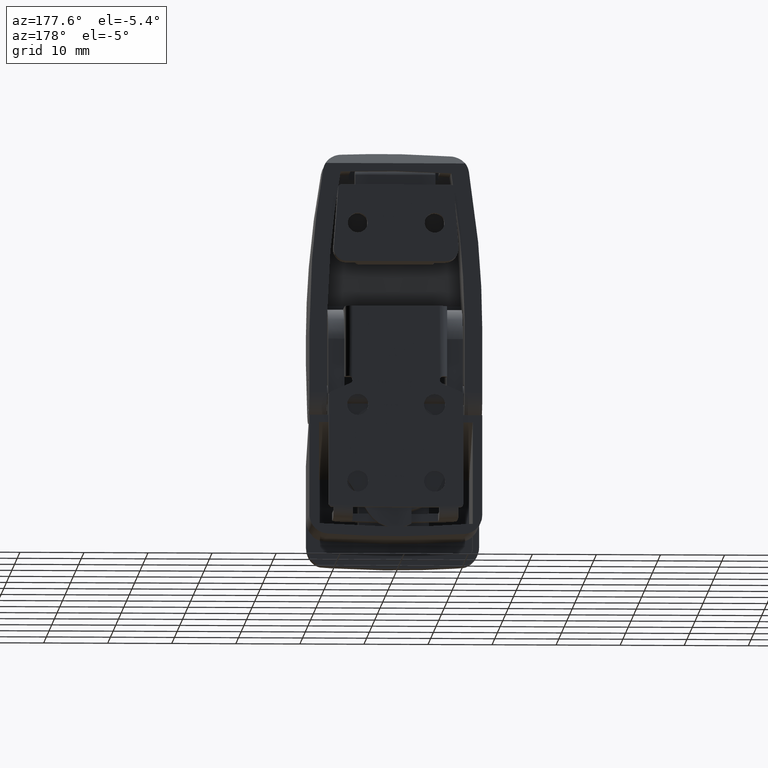
[diagram: clean part render]
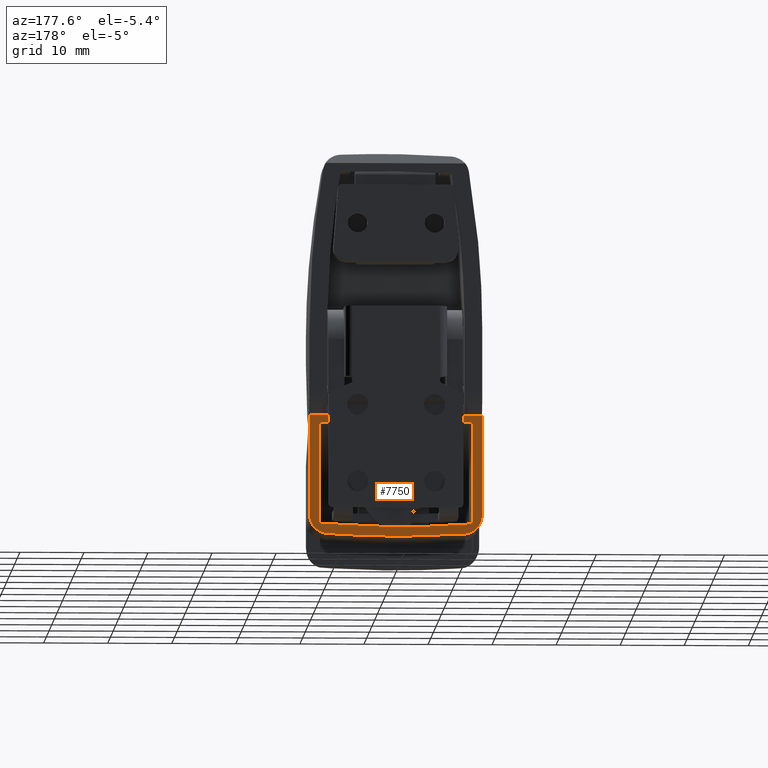
[diagram: same view with one face highlighted and labeled with its STEP entity id]
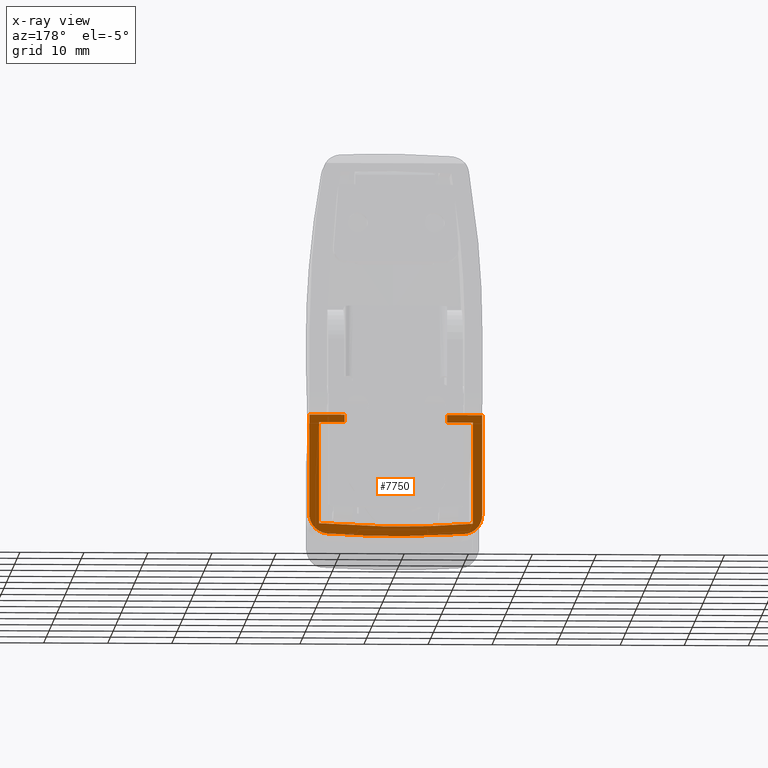
[diagram: x-ray of the same camera — body ghosted, the highlighted face saturated]
A machine part, auxiliary view. The second image highlights one B-rep face of the part: STEP entity #7750.
The next image is the same camera in x-ray: the body ghosted, the highlighted face saturated — about 0% of this face is hidden behind the body in this view.
In plain terms, the highlighted face is a freeform B-spline surface patch.
Its self-contained STEP definition (entity closure, byte-faithful):
#3903=CARTESIAN_POINT('',(-1.201443999999980,8.0,-2.654700546271595));
#3904=VERTEX_POINT('',#3903);
#3910=CARTESIAN_POINT('',(-1.201443999999980,8.0,-1.500000000000000));
#3911=VERTEX_POINT('',#3910);
#3912=CARTESIAN_POINT('',(-1.201443999999980,8.0,-1.500000000000000));
#3913=CARTESIAN_POINT('',(-1.201443999999980,8.0,-2.654700546271595));
#3914=QUASI_UNIFORM_CURVE('',1,(#3912,#3913),.UNSPECIFIED.,.F.,.U.);
#3915=EDGE_CURVE('',#3911,#3904,#3914,.T.);
#3992=CARTESIAN_POINT('',(-1.201443999999980,-8.0,-1.500000000000000));
#3993=VERTEX_POINT('',#3992);
#3999=CARTESIAN_POINT('',(-1.201443999999980,-8.0,-2.654700546271595));
#4000=VERTEX_POINT('',#3999);
#4001=CARTESIAN_POINT('',(-1.201443999999980,-8.0,-2.654700546271595));
#4002=CARTESIAN_POINT('',(-1.201443999999980,-8.0,-1.500000000000000));
#4003=QUASI_UNIFORM_CURVE('',1,(#4001,#4002),.UNSPECIFIED.,.F.,.U.);
#4004=EDGE_CURVE('',#4000,#3993,#4003,.T.);
#5026=CARTESIAN_POINT('',(-1.201443999999980,12.0,-2.654700546271600));
#5027=VERTEX_POINT('',#5026);
#5033=CARTESIAN_POINT('',(-1.201443999999980,12.0,-2.654700546271600));
#5034=CARTESIAN_POINT('',(-1.201443999999980,8.0,-2.654700546271595));
#5035=QUASI_UNIFORM_CURVE('',1,(#5033,#5034),.UNSPECIFIED.,.F.,.U.);
#5036=EDGE_CURVE('',#5027,#3904,#5035,.T.);
#5179=CARTESIAN_POINT('',(-1.201443999999980,-12.0,-2.654700546271595));
#5180=VERTEX_POINT('',#5179);
#5181=CARTESIAN_POINT('',(-1.201443999999980,-8.0,-2.654700546271595));
#5182=CARTESIAN_POINT('',(-1.201443999999980,-12.0,-2.654700546271595));
#5183=QUASI_UNIFORM_CURVE('',1,(#5181,#5182),.UNSPECIFIED.,.F.,.U.);
#5184=EDGE_CURVE('',#4000,#5180,#5183,.T.);
#5312=CARTESIAN_POINT('',(-1.201444000000000,-12.0,-18.514357411705149));
#5313=VERTEX_POINT('',#5312);
#5314=CARTESIAN_POINT('',(-1.201444000000000,-12.0,-18.514357411705149));
#5315=CARTESIAN_POINT('',(-1.201443999999980,-12.0,-2.654700546271595));
#5316=QUASI_UNIFORM_CURVE('',1,(#5314,#5315),.UNSPECIFIED.,.F.,.U.);
#5317=EDGE_CURVE('',#5313,#5180,#5316,.T.);
#5348=CARTESIAN_POINT('',(-1.201444000000000,12.0,-18.514357411705149));
#5349=VERTEX_POINT('',#5348);
#5350=CARTESIAN_POINT('',(-1.201444000000000,-11.999999999999980,-18.514357411705149));
#5351=CARTESIAN_POINT('',(-1.201444000000001,-1.187661E-013,-19.487236006174612));
#5352=CARTESIAN_POINT('',(-1.201444000000000,11.999999999999980,-18.514357411705149));
#5360=(BOUNDED_CURVE()B_SPLINE_CURVE(2,(#5350,#5351,#5352),.UNSPECIFIED.,.F.,.U.)CURVE()GEOMETRIC_REPRESENTATION_ITEM()QUASI_UNIFORM_CURVE()RATIONAL_B_SPLINE_CURVE((1.0,0.996729679540102,1.0))REPRESENTATION_ITEM(''));
#5361=EDGE_CURVE('',#5313,#5349,#5360,.T.);
#5394=CARTESIAN_POINT('',(-1.201443999999980,12.0,-2.654700546271600));
#5395=CARTESIAN_POINT('',(-1.201444000000000,12.0,-18.514357411705149));
#5396=QUASI_UNIFORM_CURVE('',1,(#5394,#5395),.UNSPECIFIED.,.F.,.U.);
#5397=EDGE_CURVE('',#5027,#5349,#5396,.T.);
#5585=CARTESIAN_POINT('',(-1.201443999999980,13.500000000000000,-1.500000000000000));
#5586=VERTEX_POINT('',#5585);
#5587=CARTESIAN_POINT('',(-1.201443999999980,8.0,-1.500000000000000));
#5588=CARTESIAN_POINT('',(-1.201443999999980,13.500000000000000,-1.500000000000000));
#5589=QUASI_UNIFORM_CURVE('',1,(#5587,#5588),.UNSPECIFIED.,.F.,.U.);
#5590=EDGE_CURVE('',#3911,#5586,#5589,.T.);
#5732=CARTESIAN_POINT('',(-1.201444000000000,-10.714285726916399,-20.116857151331700));
#5733=VERTEX_POINT('',#5732);
#5739=CARTESIAN_POINT('',(-1.201444000000000,-13.500000000000000,-17.124520000000000));
#5740=VERTEX_POINT('',#5739);
#5741=CARTESIAN_POINT('',(-1.201444000000000,-10.714285726916399,-20.116857151331700));
#5742=CARTESIAN_POINT('',(-1.201444000000000,-13.500000000000002,-19.917367996934964));
#5743=CARTESIAN_POINT('',(-1.201444000000000,-13.500000000000000,-17.124520000000000));
#5751=(BOUNDED_CURVE()B_SPLINE_CURVE(2,(#5741,#5742,#5743),.UNSPECIFIED.,.F.,.U.)CURVE()GEOMETRIC_REPRESENTATION_ITEM()QUASI_UNIFORM_CURVE()RATIONAL_B_SPLINE_CURVE((1.0,0.731925056149467,1.0))REPRESENTATION_ITEM(''));
#5752=EDGE_CURVE('',#5733,#5740,#5751,.T.);
#5976=CARTESIAN_POINT('',(-1.201444000000000,13.500000000000000,-17.124520000000000));
#5977=VERTEX_POINT('',#5976);
#5983=CARTESIAN_POINT('',(-1.201444000000000,10.714285726916620,-20.116857151331700));
#5984=VERTEX_POINT('',#5983);
#5985=CARTESIAN_POINT('',(-1.201444000000000,13.500000000000000,-17.124520000000000));
#5986=CARTESIAN_POINT('',(-1.201444000000000,13.500000000000000,-19.917367996934757));
#5987=CARTESIAN_POINT('',(-1.201444000000000,10.714285726916620,-20.116857151331690));
#5995=(BOUNDED_CURVE()B_SPLINE_CURVE(2,(#5985,#5986,#5987),.UNSPECIFIED.,.F.,.U.)CURVE()GEOMETRIC_REPRESENTATION_ITEM()QUASI_UNIFORM_CURVE()RATIONAL_B_SPLINE_CURVE((1.0,0.731925056149492,1.0))REPRESENTATION_ITEM(''));
#5996=EDGE_CURVE('',#5977,#5984,#5995,.T.);
#6022=CARTESIAN_POINT('',(-1.201444000000000,10.714285726916620,-20.116857151331700));
#6023=CARTESIAN_POINT('',(-1.201444000000000,1.865452E-013,-20.884123551546843));
#6024=CARTESIAN_POINT('',(-1.201444000000000,-10.714285726916399,-20.116857151331700));
#6032=(BOUNDED_CURVE()B_SPLINE_CURVE(2,(#6022,#6023,#6024),.UNSPECIFIED.,.F.,.U.)CURVE()GEOMETRIC_REPRESENTATION_ITEM()QUASI_UNIFORM_CURVE()RATIONAL_B_SPLINE_CURVE((1.0,0.997445717390405,1.0))REPRESENTATION_ITEM(''));
#6033=EDGE_CURVE('',#5984,#5733,#6032,.T.);
#7424=CARTESIAN_POINT('',(-1.201444000000000,-13.500000000000000,-1.500000000000000));
#7425=VERTEX_POINT('',#7424);
#7426=CARTESIAN_POINT('',(-1.201444000000000,-13.500000000000000,-1.500000000000000));
#7427=CARTESIAN_POINT('',(-1.201444000000000,-13.500000000000000,-17.124520000000000));
#7428=QUASI_UNIFORM_CURVE('',1,(#7426,#7427),.UNSPECIFIED.,.F.,.U.);
#7429=EDGE_CURVE('',#7425,#5740,#7428,.T.);
#7448=CARTESIAN_POINT('',(-1.201444000000000,13.500000000000000,-17.124520000000000));
#7449=CARTESIAN_POINT('',(-1.201443999999980,13.500000000000000,-1.500000000000000));
#7450=QUASI_UNIFORM_CURVE('',1,(#7448,#7449),.UNSPECIFIED.,.F.,.U.);
#7451=EDGE_CURVE('',#5977,#5586,#7450,.T.);
#7725=CARTESIAN_POINT('',(-1.201443999999980,14.848649947668759,-0.550950048259585));
#7726=CARTESIAN_POINT('',(-1.201443999999980,-14.848650671865190,-0.550950048259585));
#7727=CARTESIAN_POINT('',(-1.201443999999980,14.848649947668759,-21.449050232453221));
#7728=CARTESIAN_POINT('',(-1.201443999999980,-14.848650671865190,-21.449050232453221));
#7729=B_SPLINE_SURFACE_WITH_KNOTS('',1,1,((#7725,#7727),(#7726,#7728)),.UNSPECIFIED.,.F.,.F.,.U.,(2,2),(2,2),(0.0,29.697300619533959),(0.0,20.898100184193630),.UNSPECIFIED.);
#7730=ORIENTED_EDGE('',*,*,#5184,.F.);
#7731=ORIENTED_EDGE('',*,*,#4004,.T.);
#7732=CARTESIAN_POINT('',(-1.201444000000000,-13.500000000000000,-1.500000000000000));
#7733=CARTESIAN_POINT('',(-1.201443999999980,-8.0,-1.500000000000000));
#7734=QUASI_UNIFORM_CURVE('',1,(#7732,#7733),.UNSPECIFIED.,.F.,.U.);
#7735=EDGE_CURVE('',#7425,#3993,#7734,.T.);
#7736=ORIENTED_EDGE('',*,*,#7735,.F.);
#7737=ORIENTED_EDGE('',*,*,#7429,.T.);
#7738=ORIENTED_EDGE('',*,*,#5752,.F.);
#7739=ORIENTED_EDGE('',*,*,#6033,.F.);
#7740=ORIENTED_EDGE('',*,*,#5996,.F.);
#7741=ORIENTED_EDGE('',*,*,#7451,.T.);
#7742=ORIENTED_EDGE('',*,*,#5590,.F.);
#7743=ORIENTED_EDGE('',*,*,#3915,.T.);
#7744=ORIENTED_EDGE('',*,*,#5036,.F.);
#7745=ORIENTED_EDGE('',*,*,#5397,.T.);
#7746=ORIENTED_EDGE('',*,*,#5361,.F.);
#7747=ORIENTED_EDGE('',*,*,#5317,.T.);
#7748=EDGE_LOOP('',(#7730,#7731,#7736,#7737,#7738,#7739,#7740,#7741,#7742,#7743,#7744,#7745,#7746,#7747));
#7749=FACE_OUTER_BOUND('',#7748,.T.);
#7750=ADVANCED_FACE('',(#7749),#7729,.T.);